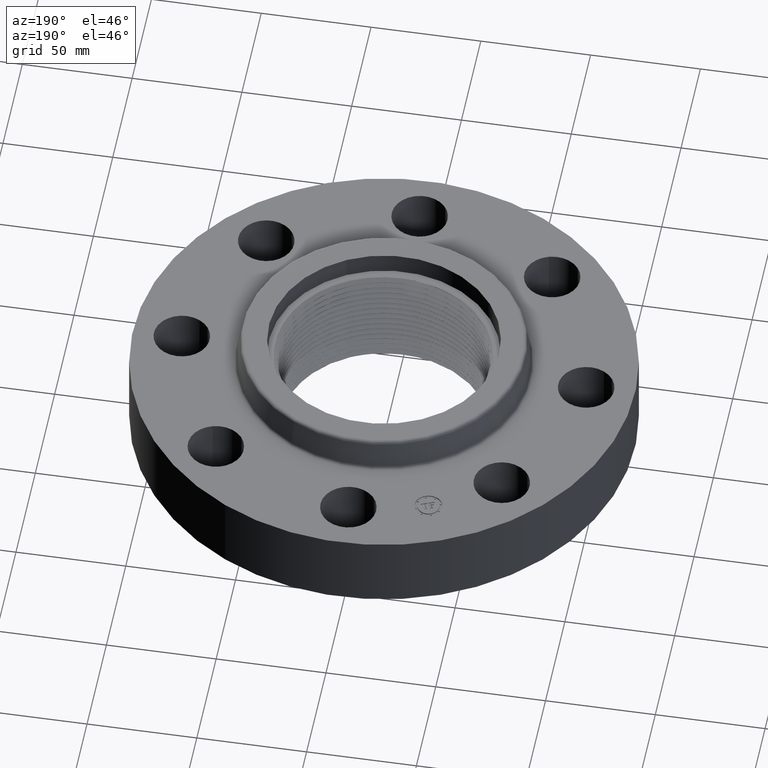
[diagram: clean part render]
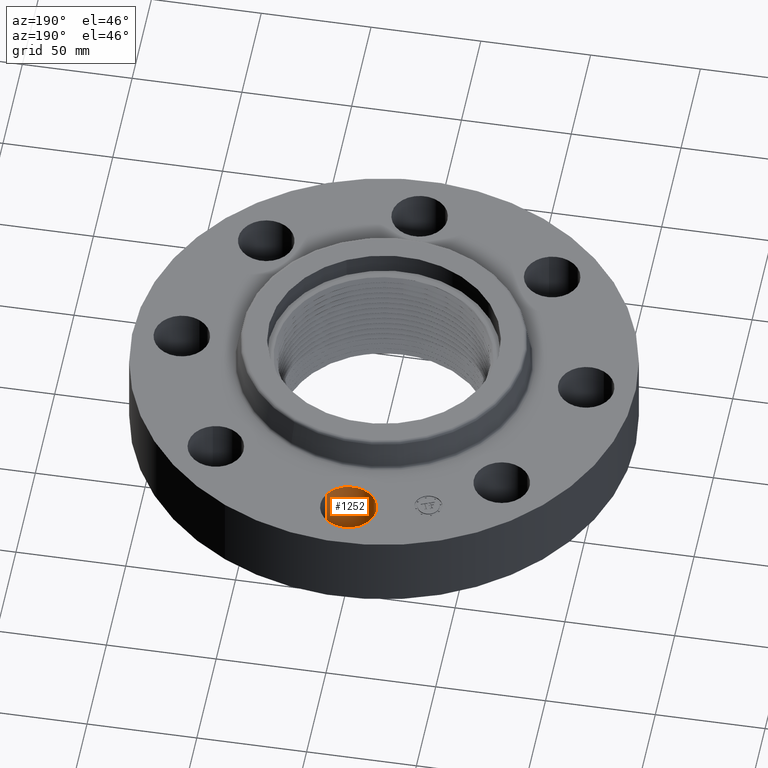
[diagram: same view with one face highlighted and labeled with its STEP entity id]
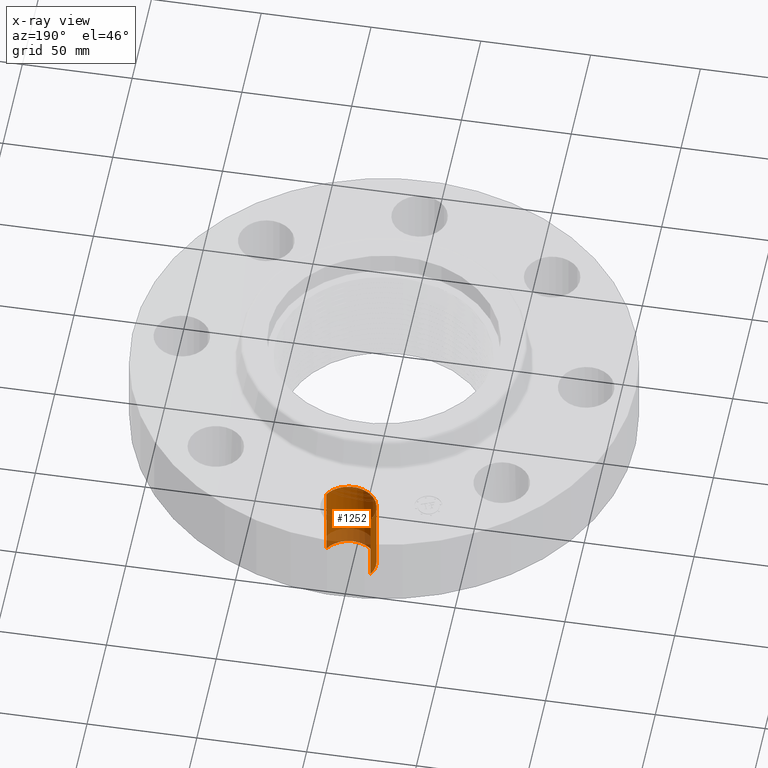
[diagram: x-ray of the same camera — body ghosted, the highlighted face saturated]
A machine part, auxiliary view. The second image highlights one B-rep face of the part: STEP entity #1252.
The next image is the same camera in x-ray: the body ghosted, the highlighted face saturated — about 20% of this face is hidden behind the body in this view.
In plain terms, the highlighted cylindrical surface (edge-blend (fillet) strip) has radius 12.7 mm, axis along (0, -0, -1).
Its self-contained STEP definition (entity closure, byte-faithful):
#907=AXIS2_PLACEMENT_3D('Circle Axis2P3D',#905,#906,$) ;
#921=AXIS2_PLACEMENT_3D('Circle Axis2P3D',#919,#920,$) ;
#1224=AXIS2_PLACEMENT_3D('Cylinder Axis2P3D',#1221,#1222,#1223) ;
#1242=AXIS2_PLACEMENT_3D('Circle Axis2P3D',#1240,#1241,$) ;
#902=CARTESIAN_POINT('Vertex',(-1.33945743657E-015,3.12500000001,2.79741234551E-016)) ;
#905=CARTESIAN_POINT('Axis2P3D Location',(-3.49676543189E-017,3.62500000001,0.)) ;
#909=CARTESIAN_POINT('Vertex',(0.438791280947,3.38528723071,0.)) ;
#916=CARTESIAN_POINT('Vertex',(-0.438791280947,3.86471276932,0.)) ;
#919=CARTESIAN_POINT('Axis2P3D Location',(-3.49676543189E-017,3.62500000001,0.)) ;
#1221=CARTESIAN_POINT('Axis2P3D Location',(0.,3.62500000001,1.37606299213)) ;
#1226=CARTESIAN_POINT('Line Origine',(0.438791280947,3.38528723071,0.690000000003)) ;
#1230=CARTESIAN_POINT('Vertex',(0.438791280947,3.38528723071,1.38000000001)) ;
#1233=CARTESIAN_POINT('Line Origine',(-0.438791280947,3.86471276932,0.690000000003)) ;
#1237=CARTESIAN_POINT('Vertex',(-0.438791280947,3.86471276932,1.38000000001)) ;
#1240=CARTESIAN_POINT('Axis2P3D Location',(0.,3.62500000001,1.38000000001)) ;
#906=DIRECTION('Axis2P3D Direction',(0.,0.,-0.0393700787402)) ;
#920=DIRECTION('Axis2P3D Direction',(0.,0.,-0.0393700787402)) ;
#1222=DIRECTION('Axis2P3D Direction',(0.,-0.,-0.0393700787402)) ;
#1223=DIRECTION('Axis2P3D XDirection',(-0.0345504945626,0.0188750212049,0.)) ;
#1227=DIRECTION('Vector Direction',(0.,0.,-0.0393700787402)) ;
#1234=DIRECTION('Vector Direction',(0.,0.,-0.0393700787402)) ;
#1241=DIRECTION('Axis2P3D Direction',(0.,-0.,-0.0393700787402)) ;
#1228=VECTOR('Line Direction',#1227,0.0393700787402) ;
#1235=VECTOR('Line Direction',#1234,0.0393700787402) ;
#1246=ORIENTED_EDGE('',*,*,#1232,.F.) ;
#1247=ORIENTED_EDGE('',*,*,#911,.T.) ;
#1248=ORIENTED_EDGE('',*,*,#923,.T.) ;
#1249=ORIENTED_EDGE('',*,*,#1239,.T.) ;
#1250=ORIENTED_EDGE('',*,*,#1244,.F.) ;
#1252=ADVANCED_FACE('PartBody',(#1251),#1225,.F.) ;
#908=CIRCLE('generated circle',#907,0.500000000002) ;
#922=CIRCLE('generated circle',#921,0.500000000002) ;
#1243=CIRCLE('generated circle',#1242,0.500000000002) ;
#1225=CYLINDRICAL_SURFACE('generated cylinder',#1224,0.500000000002) ;
#911=EDGE_CURVE('',#910,#903,#908,.T.) ;
#923=EDGE_CURVE('',#903,#917,#922,.T.) ;
#1232=EDGE_CURVE('',#910,#1231,#1229,.F.) ;
#1239=EDGE_CURVE('',#917,#1238,#1236,.F.) ;
#1244=EDGE_CURVE('',#1231,#1238,#1243,.T.) ;
#1245=EDGE_LOOP('',(#1246,#1247,#1248,#1249,#1250)) ;
#1251=FACE_OUTER_BOUND('',#1245,.T.) ;
#1229=LINE('Line',#1226,#1228) ;
#1236=LINE('Line',#1233,#1235) ;
#903=VERTEX_POINT('',#902) ;
#910=VERTEX_POINT('',#909) ;
#917=VERTEX_POINT('',#916) ;
#1231=VERTEX_POINT('',#1230) ;
#1238=VERTEX_POINT('',#1237) ;